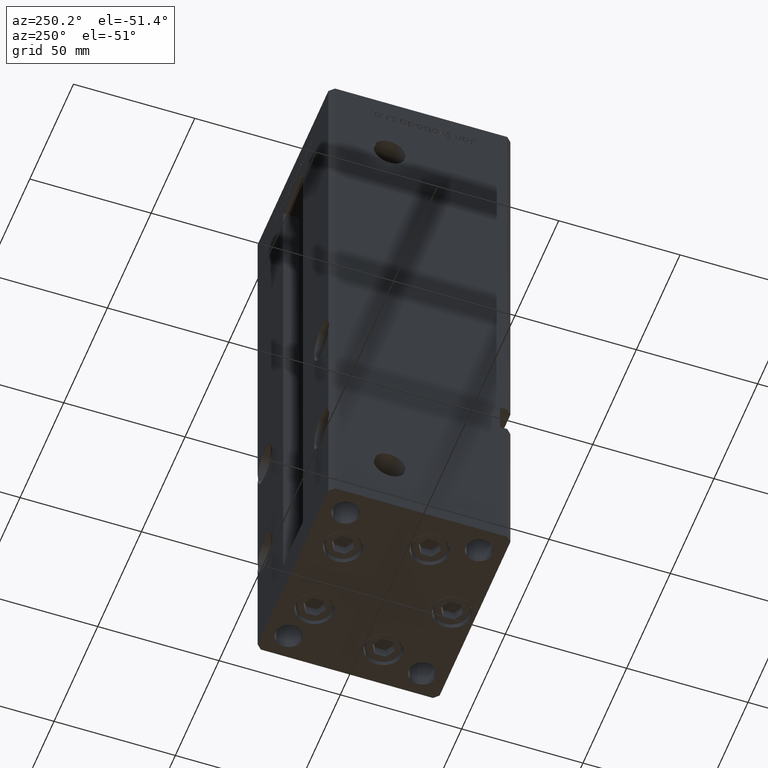
[diagram: clean part render]
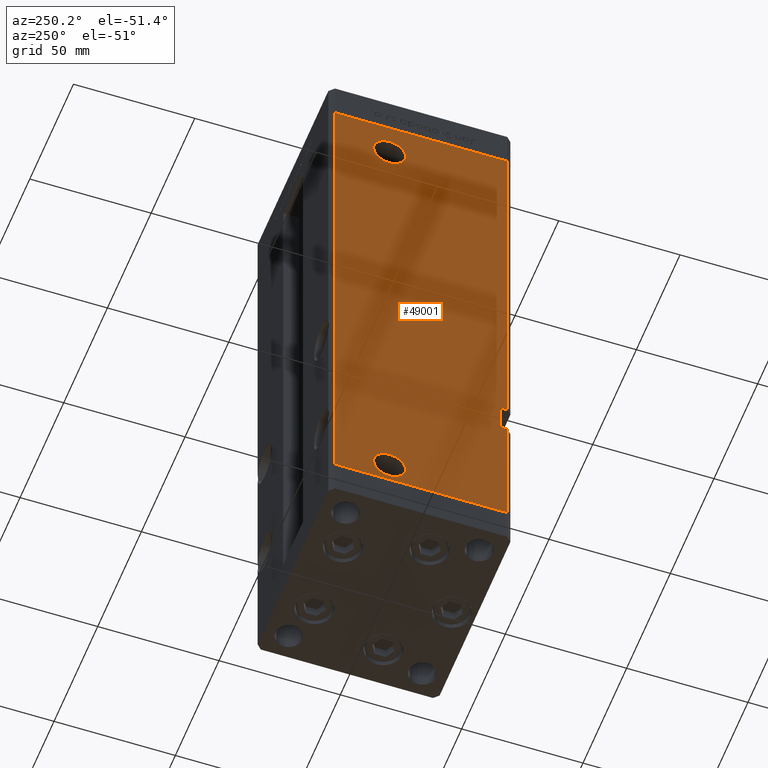
[diagram: same view with one face highlighted and labeled with its STEP entity id]
A machine part, auxiliary view. The second image highlights one B-rep face of the part: STEP entity #49001.
In plain terms, the highlighted planar face has unit normal (1, 0, 0).
Its self-contained STEP definition (entity closure, byte-faithful):
#1396 = VERTEX_POINT ( 'NONE', #3524 ) ;
#1584 = CARTESIAN_POINT ( 'NONE',  ( -42.50000000000001421, 35.50000000000000711, 0.000000000000000000 ) ) ;
#1714 = VERTEX_POINT ( 'NONE', #40500 ) ;
#2890 = VERTEX_POINT ( 'NONE', #16890 ) ;
#3502 = ORIENTED_EDGE ( 'NONE', *, *, #13572, .F. ) ;
#3524 = CARTESIAN_POINT ( 'NONE',  ( -42.50000000000000000, 19.58000000000000895, 203.5000000000000000 ) ) ;
#3746 = DIRECTION ( 'NONE',  ( -0.000000000000000000, -1.000000000000000000, -0.000000000000000000 ) ) ;
#3887 = EDGE_CURVE ( 'NONE', #14264, #1714, #40577, .T. ) ;
#3890 = CARTESIAN_POINT ( 'NONE',  ( -42.49999999999998579, -35.50000000000000711, 0.000000000000000000 ) ) ;
#4085 = LINE ( 'NONE', #52754, #44603 ) ;
#4205 = VERTEX_POINT ( 'NONE', #3890 ) ;
#5346 = DIRECTION ( 'NONE',  ( -1.734723475976805517E-15, 0.000000000000000000, -1.000000000000000000 ) ) ;
#5615 = ORIENTED_EDGE ( 'NONE', *, *, #51518, .F. ) ;
#6156 = VERTEX_POINT ( 'NONE', #41778 ) ;
#6304 = CIRCLE ( 'NONE', #34679, 6.580000000000002736 ) ;
#7107 = DIRECTION ( 'NONE',  ( 0.000000000000000000, -1.000000000000000000, 0.000000000000000000 ) ) ;
#7168 = VERTEX_POINT ( 'NONE', #24371 ) ;
#7876 = CARTESIAN_POINT ( 'NONE',  ( -42.49999999999998579, -35.50000000000000711, 218.5000000000000000 ) ) ;
#8414 = DIRECTION ( 'NONE',  ( -0.000000000000000000, -0.000000000000000000, -1.000000000000000000 ) ) ;
#9240 = ORIENTED_EDGE ( 'NONE', *, *, #13613, .F. ) ;
#9376 = CARTESIAN_POINT ( 'NONE',  ( -42.50000000000000000, 12.99999999999999467, 203.5000000000000000 ) ) ;
#9602 = AXIS2_PLACEMENT_3D ( 'NONE', #9376, #33321, #17437 ) ;
#9857 = CARTESIAN_POINT ( 'NONE',  ( -42.50000000000001421, 35.50000000000000711, 218.5000000000000000 ) ) ;
#10819 = ORIENTED_EDGE ( 'NONE', *, *, #13633, .T. ) ;
#12893 = CARTESIAN_POINT ( 'NONE',  ( -42.50000000000000000, 19.57999999999999829, 9.000000000000007105 ) ) ;
#13335 = LINE ( 'NONE', #29731, #48756 ) ;
#13572 = EDGE_CURVE ( 'NONE', #14264, #38878, #17703, .T. ) ;
#13613 = EDGE_CURVE ( 'NONE', #23682, #1396, #27632, .T. ) ;
#13633 = EDGE_CURVE ( 'NONE', #2890, #4205, #41668, .T. ) ;
#14264 = VERTEX_POINT ( 'NONE', #34446 ) ;
#15056 = CARTESIAN_POINT ( 'NONE',  ( -42.49999999999998579, -35.50000000000000711, 218.5000000000000000 ) ) ;
#16690 = DIRECTION ( 'NONE',  ( -3.909236002201255146E-16, 1.000000000000000000, 0.000000000000000000 ) ) ;
#16890 = CARTESIAN_POINT ( 'NONE',  ( -42.50000000000001421, 35.50000000000000711, 0.000000000000000000 ) ) ;
#17230 = CARTESIAN_POINT ( 'NONE',  ( -42.50000000000001421, 35.50000000000000711, 218.5000000000000000 ) ) ;
#17437 = DIRECTION ( 'NONE',  ( 0.000000000000000000, -1.000000000000000000, 0.000000000000000000 ) ) ;
#17593 = ORIENTED_EDGE ( 'NONE', *, *, #31111, .F. ) ;
#17594 = EDGE_CURVE ( 'NONE', #23458, #1714, #40430, .T. ) ;
#17703 = LINE ( 'NONE', #42190, #39701 ) ;
#17960 = DIRECTION ( 'NONE',  ( 3.909236002201255146E-16, -1.000000000000000000, 0.000000000000000000 ) ) ;
#18435 = EDGE_LOOP ( 'NONE', ( #43779, #5615, #3502, #43377, #29077, #29382, #37840, #10819 ) ) ;
#19279 = DIRECTION ( 'NONE',  ( -0.000000000000000000, -1.000000000000000000, -0.000000000000000000 ) ) ;
#20274 = EDGE_CURVE ( 'NONE', #1396, #23682, #48444, .T. ) ;
#20966 = DIRECTION ( 'NONE',  ( 0.000000000000000000, -1.000000000000000000, 0.000000000000000000 ) ) ;
#21737 = VERTEX_POINT ( 'NONE', #12893 ) ;
#22093 = VERTEX_POINT ( 'NONE', #38567 ) ;
#22215 = LINE ( 'NONE', #9857, #29608 ) ;
#23458 = VERTEX_POINT ( 'NONE', #15056 ) ;
#23682 = VERTEX_POINT ( 'NONE', #47290 ) ;
#23799 = AXIS2_PLACEMENT_3D ( 'NONE', #34551, #24425, #25228 ) ;
#24371 = CARTESIAN_POINT ( 'NONE',  ( -42.50000000000000000, 6.419999999999991935, 9.000000000000007105 ) ) ;
#24425 = DIRECTION ( 'NONE',  ( -1.000000000000000000, -2.275047181608927644E-16, 0.000000000000000000 ) ) ;
#24777 = DIRECTION ( 'NONE',  ( -0.000000000000000000, -0.000000000000000000, -1.000000000000000000 ) ) ;
#25228 = DIRECTION ( 'NONE',  ( 0.000000000000000000, -1.000000000000000000, 0.000000000000000000 ) ) ;
#25836 = PLANE ( 'NONE',  #47908 ) ;
#26056 = EDGE_LOOP ( 'NONE', ( #17593, #34518 ) ) ;
#27020 = DIRECTION ( 'NONE',  ( -1.000000000000000000, -2.275047181608927644E-16, 0.000000000000000000 ) ) ;
#27335 = EDGE_LOOP ( 'NONE', ( #9240, #47144 ) ) ;
#27632 = CIRCLE ( 'NONE', #9602, 6.580000000000015170 ) ;
#28740 = CARTESIAN_POINT ( 'NONE',  ( -42.49999999999997158, -32.50000000000000711, 64.00000000000002842 ) ) ;
#29072 = DIRECTION ( 'NONE',  ( 1.000000000000000000, 3.909236002201255146E-16, -0.000000000000000000 ) ) ;
#29077 = ORIENTED_EDGE ( 'NONE', *, *, #17594, .F. ) ;
#29340 = FACE_BOUND ( 'NONE', #27335, .T. ) ;
#29382 = ORIENTED_EDGE ( 'NONE', *, *, #36255, .F. ) ;
#29608 = VECTOR ( 'NONE', #30029, 1000.000000000000000 ) ;
#29731 = CARTESIAN_POINT ( 'NONE',  ( -42.49999999999998579, -35.50000000000000711, 218.5000000000000000 ) ) ;
#29995 = DIRECTION ( 'NONE',  ( -0.000000000000000000, -0.000000000000000000, -1.000000000000000000 ) ) ;
#30029 = DIRECTION ( 'NONE',  ( 3.909236002201255146E-16, -1.000000000000000000, 0.000000000000000000 ) ) ;
#31111 = EDGE_CURVE ( 'NONE', #7168, #21737, #6304, .T. ) ;
#31925 = LINE ( 'NONE', #39464, #35132 ) ;
#33321 = DIRECTION ( 'NONE',  ( -1.000000000000000000, -2.275047181608927644E-16, 0.000000000000000000 ) ) ;
#33378 = FACE_BOUND ( 'NONE', #26056, .T. ) ;
#34406 = CARTESIAN_POINT ( 'NONE',  ( -42.50000000000000000, 12.99999999999999467, 9.000000000000007105 ) ) ;
#34446 = CARTESIAN_POINT ( 'NONE',  ( -42.49999999999997158, -32.50000000000000711, 64.00000000000002842 ) ) ;
#34518 = ORIENTED_EDGE ( 'NONE', *, *, #42129, .F. ) ;
#34551 = CARTESIAN_POINT ( 'NONE',  ( -42.50000000000000000, 12.99999999999999467, 9.000000000000007105 ) ) ;
#34679 = AXIS2_PLACEMENT_3D ( 'NONE', #34406, #42739, #20966 ) ;
#35132 = VECTOR ( 'NONE', #19279, 1000.000000000000000 ) ;
#35517 = VECTOR ( 'NONE', #8414, 1000.000000000000000 ) ;
#35600 = AXIS2_PLACEMENT_3D ( 'NONE', #43169, #27020, #7107 ) ;
#36103 = VECTOR ( 'NONE', #3746, 1000.000000000000000 ) ;
#36255 = EDGE_CURVE ( 'NONE', #22093, #23458, #22215, .T. ) ;
#37840 = ORIENTED_EDGE ( 'NONE', *, *, #52260, .T. ) ;
#38567 = CARTESIAN_POINT ( 'NONE',  ( -42.50000000000001421, 35.50000000000000711, 218.5000000000000000 ) ) ;
#38878 = VERTEX_POINT ( 'NONE', #44323 ) ;
#39464 = CARTESIAN_POINT ( 'NONE',  ( -42.49999999999998579, -32.50000000000000711, 52.00000000000002132 ) ) ;
#39666 = VECTOR ( 'NONE', #17960, 1000.000000000000000 ) ;
#39701 = VECTOR ( 'NONE', #5346, 1000.000000000000000 ) ;
#40430 = LINE ( 'NONE', #7876, #35517 ) ;
#40500 = CARTESIAN_POINT ( 'NONE',  ( -42.49999999999997158, -35.50000000000002132, 64.00000000000002842 ) ) ;
#40577 = LINE ( 'NONE', #28740, #36103 ) ;
#41668 = LINE ( 'NONE', #1584, #39666 ) ;
#41778 = CARTESIAN_POINT ( 'NONE',  ( -42.49999999999998579, -35.49999999999972289, 52.00000000000002132 ) ) ;
#41981 = FACE_OUTER_BOUND ( 'NONE', #18435, .T. ) ;
#42129 = EDGE_CURVE ( 'NONE', #21737, #7168, #43570, .T. ) ;
#42190 = CARTESIAN_POINT ( 'NONE',  ( -42.49999999999997158, -32.50000000000000711, 64.00000000000002842 ) ) ;
#42739 = DIRECTION ( 'NONE',  ( -1.000000000000000000, -2.275047181608927644E-16, 0.000000000000000000 ) ) ;
#43169 = CARTESIAN_POINT ( 'NONE',  ( -42.50000000000000000, 12.99999999999999467, 203.5000000000000000 ) ) ;
#43377 = ORIENTED_EDGE ( 'NONE', *, *, #3887, .T. ) ;
#43570 = CIRCLE ( 'NONE', #23799, 6.580000000000002736 ) ;
#43779 = ORIENTED_EDGE ( 'NONE', *, *, #48371, .F. ) ;
#44323 = CARTESIAN_POINT ( 'NONE',  ( -42.49999999999998579, -32.50000000000000711, 52.00000000000002132 ) ) ;
#44603 = VECTOR ( 'NONE', #24777, 1000.000000000000000 ) ;
#47144 = ORIENTED_EDGE ( 'NONE', *, *, #20274, .F. ) ;
#47290 = CARTESIAN_POINT ( 'NONE',  ( -42.50000000000000000, 6.419999999999978613, 203.5000000000000000 ) ) ;
#47908 = AXIS2_PLACEMENT_3D ( 'NONE', #17230, #29072, #16690 ) ;
#48371 = EDGE_CURVE ( 'NONE', #6156, #4205, #13335, .T. ) ;
#48444 = CIRCLE ( 'NONE', #35600, 6.580000000000015170 ) ;
#48756 = VECTOR ( 'NONE', #29995, 1000.000000000000000 ) ;
#49001 = ADVANCED_FACE ( 'NONE', ( #41981, #33378, #29340 ), #25836, .F. ) ;
#51518 = EDGE_CURVE ( 'NONE', #38878, #6156, #31925, .T. ) ;
#52260 = EDGE_CURVE ( 'NONE', #22093, #2890, #4085, .T. ) ;
#52754 = CARTESIAN_POINT ( 'NONE',  ( -42.50000000000001421, 35.50000000000000711, 218.5000000000000000 ) ) ;